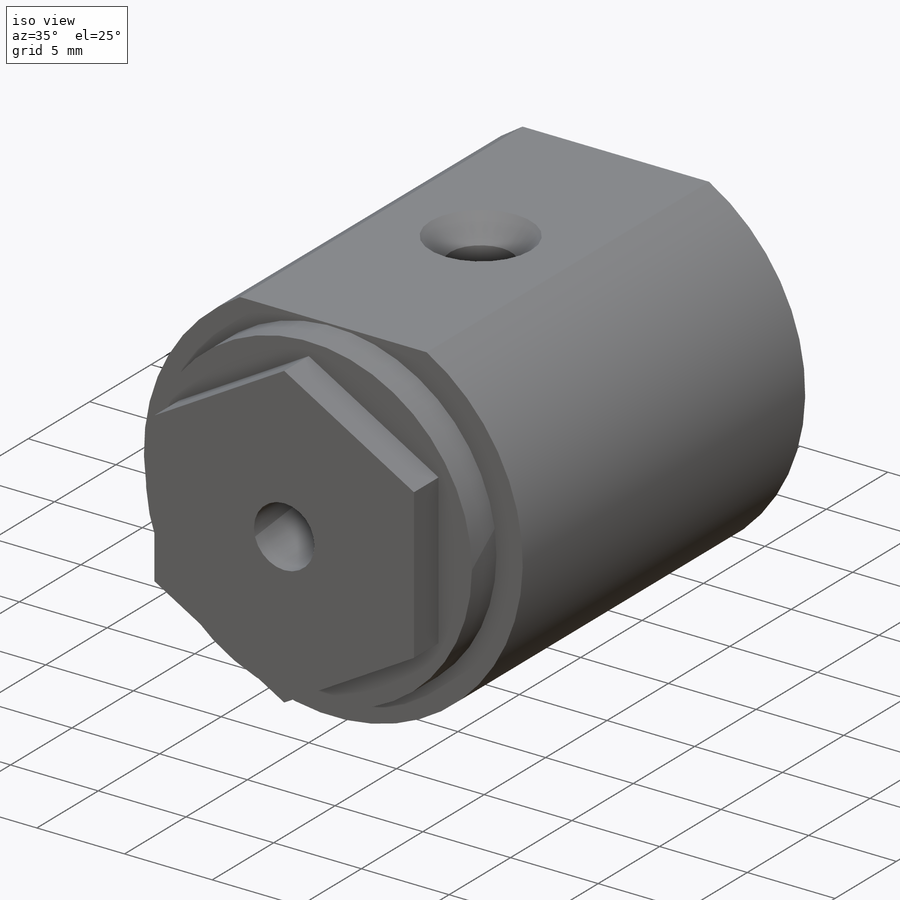
[diagram: iso view]
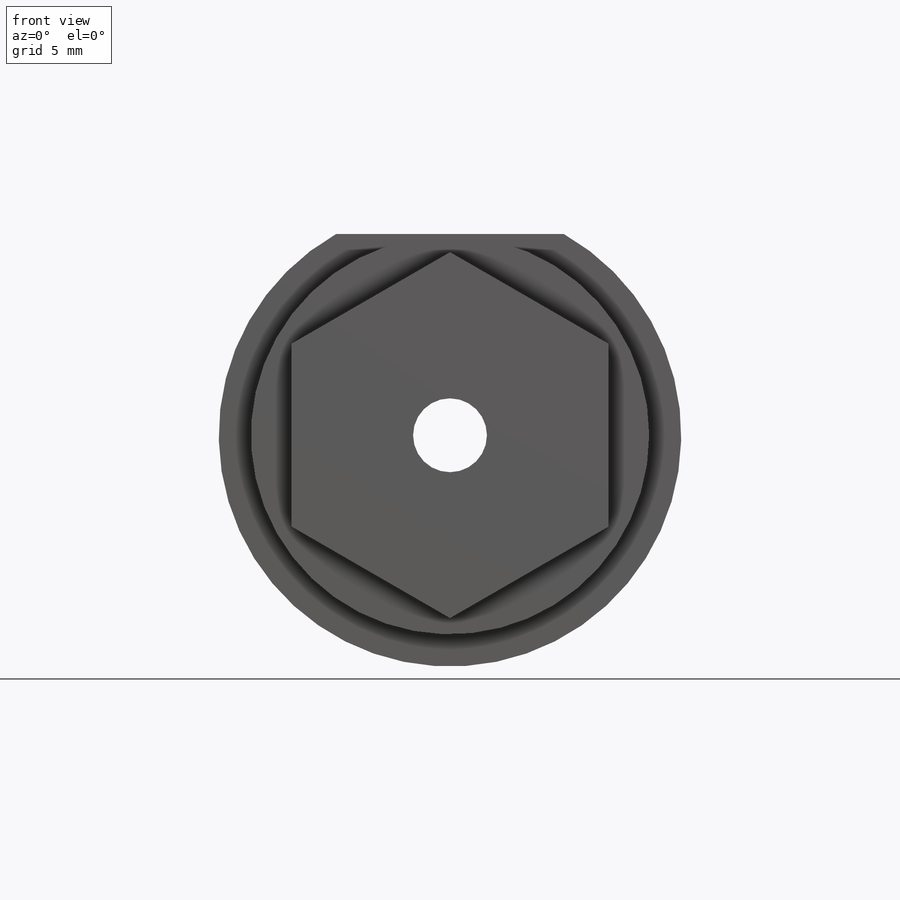
[diagram: front view]
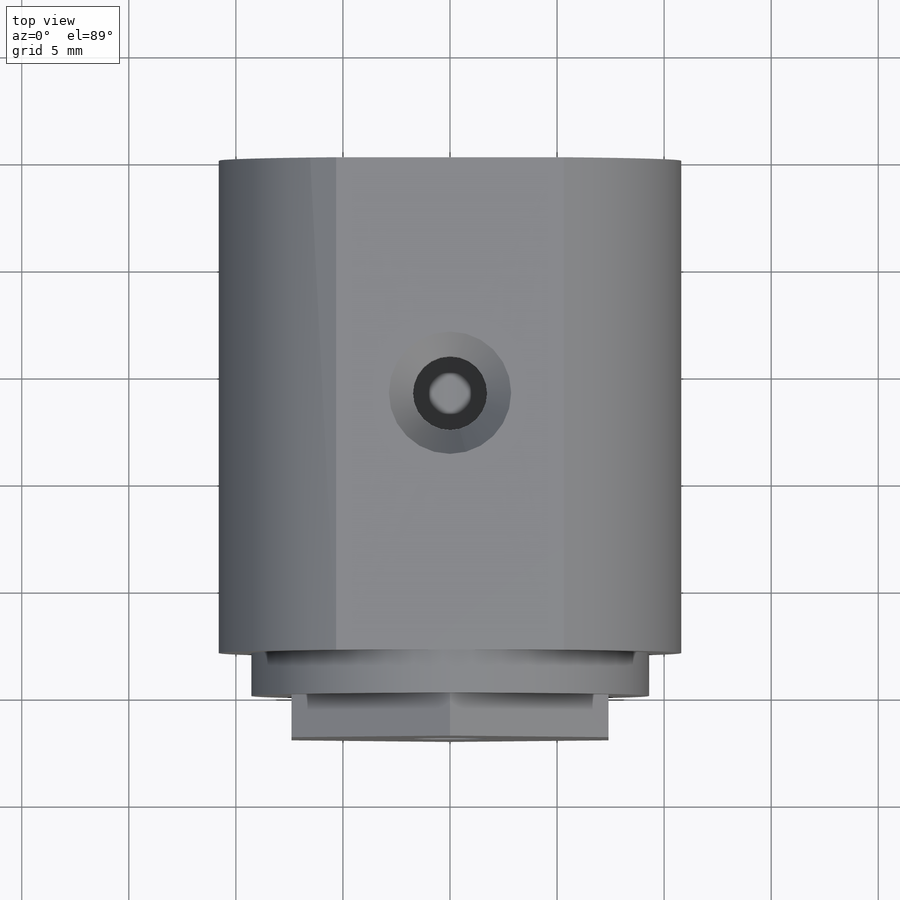
[diagram: top view]
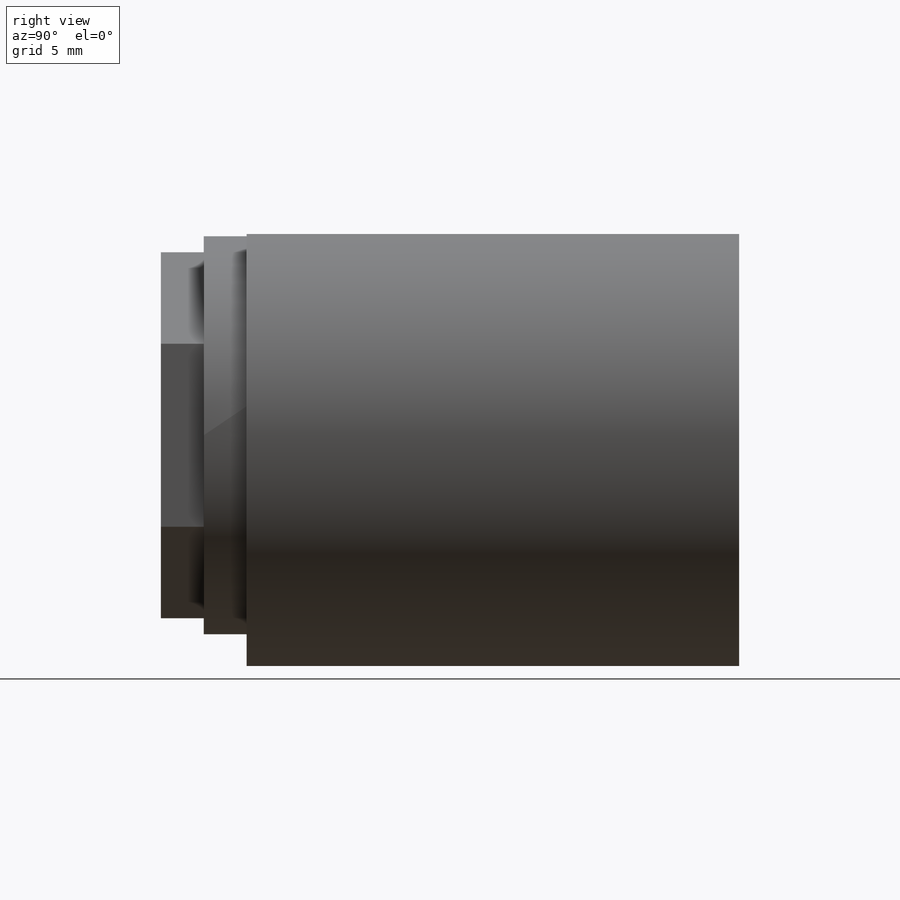
[diagram: right view]
SOLIDWORKS PART (.sldprt)
format: sldprt  version: not decoded by parser v0  size: 313,856 bytes
history: native  units: mm
features: sketch x8, plane x4, extrude x3, cut_extrude x2, material x1, hole x1 (+13 scaffold rows collapsed)
feature tree (32):
  scaffold x13  (default folders/planes/origin — collapsed)
  material  "Material <not specified>"
  sketch  "Base"  dims[c1.D1=21.6mm c1.D2=15.6mm c1.D4=7.9mm c2.D1=10.8mm c2.D3=5.8mm c2.D4=13.6mm c3.D3=13.8mm c3.D2=3.5mm]
  extrude  "Boss-Extrude1"  Depth=23mm
  plane  "Chamfer Plane"  Offset=0mm
  sketch  "Screw Hole"  dims[D1=3.6mm D2=11.0mm]
  hole  "CSK for #4 Flat Head Machine Screw1"  Diameter=3.4544mm Depth=3.5mm
  sketch  "Sketch4"
  sketch  "Sketch3"  dims[hole-wizard template sketch: 55 standard entries collapsed; hole parameters kept: c17.Thru Hole Depth=3.5mm c17.Near C'Sink Dia.=5.715mm c17.D4=~3.666174mm c17.Near C'Sink Angle=82.0deg]
  plane  "Plane1"  Offset=0mm
  sketch  "Sketch5"  dims[D1=14.8mm]
  extrude  "Boss-Extrude2"  Depth=2mm
  plane  "Plane2"  Offset=0mm
  sketch  "Sketch6"  dims[D1=14.8mm]
  extrude  "Boss-Extrude3"  Depth=2mm
  plane  "Plane3"  Offset=0mm
  sketch  "Sketch7"  dims[c1.D1=6.7mm c2.D1=~1.905256mm]
  cut_extrude  "Cut-Extrude1"  Depth=3.6mm
  sketch  "Sketch8"  dims[D1=3.45mm]
  cut_extrude  "Cut-Extrude2"  [1 undecoded]
decode coverage: 12 of 14 modeling features carry decoded parameters
note: ~ marks probable driven/reference dimensions
note: 1 parameter value undecoded
note: suppression state not decoded; provenance and decode notes live in map.json
